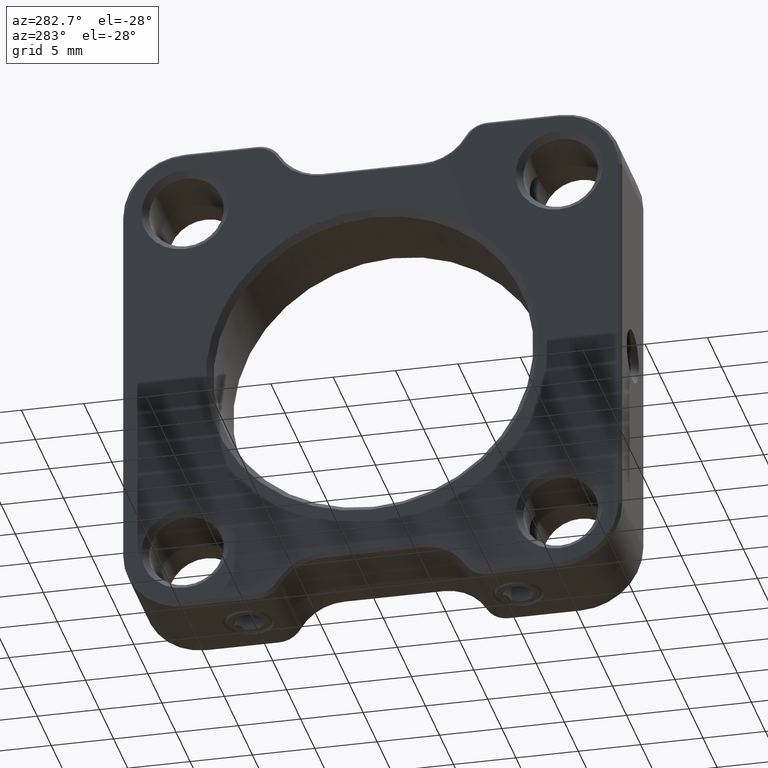
[diagram: clean part render]
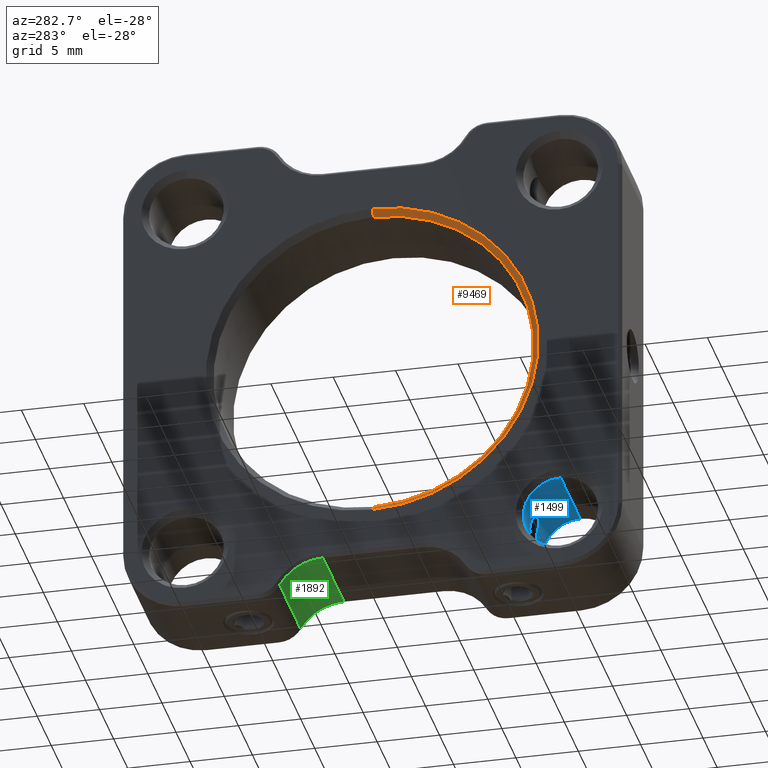
[diagram: same view with three faces highlighted in distinct colors, each labeled with its STEP entity id]
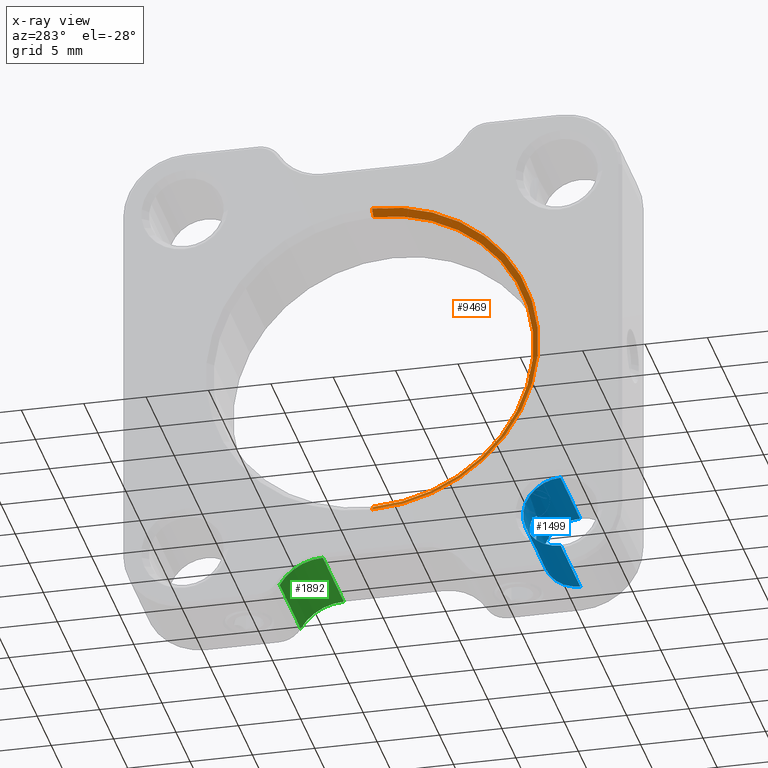
[diagram: x-ray of the same camera — body ghosted, the three highlighted faces saturated]
A machine part, auxiliary view with three faces highlighted in distinct colors.
The next image is the same camera in x-ray (body ghosted, the three faces saturated) — at least one of them is partly hidden behind the body in this view.
Their STEP definitions:

[orange] entity #9469 — the highlighted conical surface has half-angle 45 deg.
#356 = FACE_OUTER_BOUND ( 'NONE', #16214, .T. ) ;
#828 = CARTESIAN_POINT ( 'NONE',  ( -3.500000000000001332, 1.570854449266309722E-15, 12.82699999999999818 ) ) ;
#1126 = VECTOR ( 'NONE', #19083, 1000.000000000000000 ) ;
#1416 = VERTEX_POINT ( 'NONE', #5856 ) ;
#1881 = CARTESIAN_POINT ( 'NONE',  ( -4.000000000000000000, 0.000000000000000000, 0.000000000000000000 ) ) ;
#2743 = LINE ( 'NONE', #17933, #19966 ) ;
#3280 = CARTESIAN_POINT ( 'NONE',  ( -4.000000000000000000, 0.000000000000000000, 0.000000000000000000 ) ) ;
#4178 = DIRECTION ( 'NONE',  ( 0.000000000000000000, 0.000000000000000000, -1.000000000000000000 ) ) ;
#5057 = CARTESIAN_POINT ( 'NONE',  ( -3.500000000000001332, 0.000000000000000000, -12.82699999999999818 ) ) ;
#5320 = EDGE_CURVE ( 'NONE', #6261, #8031, #2743, .T. ) ;
#5475 = DIRECTION ( 'NONE',  ( -1.000000000000000000, -0.000000000000000000, -0.000000000000000000 ) ) ;
#5856 = CARTESIAN_POINT ( 'NONE',  ( -4.000000000000000000, 1.632086789223677494E-15, -13.32699999999999818 ) ) ;
#5872 = AXIS2_PLACEMENT_3D ( 'NONE', #1881, #5475, #10063 ) ;
#6261 = VERTEX_POINT ( 'NONE', #828 ) ;
#6703 = CIRCLE ( 'NONE', #13876, 13.32699999999999818 ) ;
#7908 = LINE ( 'NONE', #14664, #1126 ) ;
#8031 = VERTEX_POINT ( 'NONE', #13052 ) ;
#8540 = ORIENTED_EDGE ( 'NONE', *, *, #16275, .T. ) ;
#8572 = CIRCLE ( 'NONE', #15517, 12.82699999999999818 ) ;
#8729 = DIRECTION ( 'NONE',  ( -0.7071067811865463515, 0.000000000000000000, 0.7071067811865487940 ) ) ;
#8965 = CARTESIAN_POINT ( 'NONE',  ( -3.500000000000001332, 0.000000000000000000, 0.000000000000000000 ) ) ;
#9469 = ADVANCED_FACE ( 'NONE', ( #356 ), #19038, .F. ) ;
#9761 = DIRECTION ( 'NONE',  ( 0.000000000000000000, 0.000000000000000000, -1.000000000000000000 ) ) ;
#9885 = VERTEX_POINT ( 'NONE', #5057 ) ;
#10032 = ORIENTED_EDGE ( 'NONE', *, *, #14214, .F. ) ;
#10063 = DIRECTION ( 'NONE',  ( 0.000000000000000000, 0.000000000000000000, 1.000000000000000000 ) ) ;
#11082 = ORIENTED_EDGE ( 'NONE', *, *, #5320, .F. ) ;
#11949 = DIRECTION ( 'NONE',  ( -1.000000000000000000, -0.000000000000000000, -0.000000000000000000 ) ) ;
#13052 = CARTESIAN_POINT ( 'NONE',  ( -4.000000000000000000, 0.000000000000000000, 13.32699999999999818 ) ) ;
#13876 = AXIS2_PLACEMENT_3D ( 'NONE', #3280, #14431, #9761 ) ;
#14214 = EDGE_CURVE ( 'NONE', #9885, #6261, #8572, .T. ) ;
#14431 = DIRECTION ( 'NONE',  ( 1.000000000000000000, 0.000000000000000000, 0.000000000000000000 ) ) ;
#14664 = CARTESIAN_POINT ( 'NONE',  ( -4.000000000000000000, 1.632086789223677494E-15, -13.32699999999999818 ) ) ;
#15517 = AXIS2_PLACEMENT_3D ( 'NONE', #8965, #11949, #4178 ) ;
#16214 = EDGE_LOOP ( 'NONE', ( #10032, #8540, #17812, #11082 ) ) ;
#16275 = EDGE_CURVE ( 'NONE', #9885, #1416, #7908, .T. ) ;
#17812 = ORIENTED_EDGE ( 'NONE', *, *, #19604, .F. ) ;
#17933 = CARTESIAN_POINT ( 'NONE',  ( -4.000000000000000000, 0.000000000000000000, 13.32699999999999818 ) ) ;
#19038 = CONICAL_SURFACE ( 'NONE', #5872, 13.32699999999999818, 0.7853981633974500554 ) ;
#19083 = DIRECTION ( 'NONE',  ( -0.7071067811865463515, 8.659560562354950115E-17, -0.7071067811865487940 ) ) ;
#19604 = EDGE_CURVE ( 'NONE', #8031, #1416, #6703, .T. ) ;
#19966 = VECTOR ( 'NONE', #8729, 1000.000000000000000 ) ;

[blue] entity #1499 — the highlighted cylindrical surface (partial cylindrical patch) has radius 3 mm, axis along (1, -0, -0).
#14 = AXIS2_PLACEMENT_3D ( 'NONE', #3045, #1620, #12491 ) ;
#164 = VECTOR ( 'NONE', #13036, 1000.000000000000000 ) ;
#369 = CARTESIAN_POINT ( 'NONE',  ( 0.9943072128972927359, -12.11808910440462661, -15.84901384100071198 ) ) ;
#583 = CARTESIAN_POINT ( 'NONE',  ( -4.000000000000000000, -15.00000000000000000, -15.00000000000000000 ) ) ;
#768 = DIRECTION ( 'NONE',  ( 0.000000000000000000, 0.000000000000000000, -1.000000000000000000 ) ) ;
#969 = CARTESIAN_POINT ( 'NONE',  ( -0.8814830470640713234, -12.19956182346815865, -13.91563520749170912 ) ) ;
#1499 = ADVANCED_FACE ( 'NONE', ( #11283, #14934 ), #11044, .F. ) ;
#1620 = DIRECTION ( 'NONE',  ( -1.000000000000000000, -0.000000000000000000, -0.000000000000000000 ) ) ;
#1791 = CARTESIAN_POINT ( 'NONE',  ( 3.500000000000008438, -15.00000000000000000, -15.00000000000000000 ) ) ;
#1969 = CARTESIAN_POINT ( 'NONE',  ( 0.9554402786752965726, -12.14695799634320927, -14.05900135198912437 ) ) ;
#2321 = CARTESIAN_POINT ( 'NONE',  ( 1.134458853636107323, -11.99838584021036958, -14.86422189423992002 ) ) ;
#2678 = CARTESIAN_POINT ( 'NONE',  ( -0.3953987548890764425, -12.40192378864669109, -13.49999999999999645 ) ) ;
#2702 = CARTESIAN_POINT ( 'NONE',  ( -0.1633470091744601838, -12.45053068160573240, -16.58120436438560930 ) ) ;
#2769 = CARTESIAN_POINT ( 'NONE',  ( -0.3337448249045446569, -12.42289168433354440, -16.53835515481565821 ) ) ;
#2810 = ORIENTED_EDGE ( 'NONE', *, *, #8600, .F. ) ;
#2837 = B_SPLINE_CURVE_WITH_KNOTS ( 'NONE', 3,
 ( #19352, #15847, #14345, #6588, #7057, #9675, #1969, #6514, #11760, #2321, #17408, #5353, #8104, #369, #6932, #14746, #16323, #6994, #18261, #7259, #10281, #2702, #2769, #15151, #8987, #18200, #13526, #10533, #13659, #7336, #19550, #18133, #13459, #11967, #969, #7122, #7198, #19608 ),
 .UNSPECIFIED., .F., .F.,
 ( 4, 2, 2, 2, 2, 2, 2, 2, 2, 2, 2, 2, 2, 2, 2, 2, 2, 2, 4 ),
 ( 1.029992063861229212E-18, 0.0002515376885659033248, 0.0005030753771318055654, 0.001006150754263613950, 0.001509226131395422334, 0.002012301508527230502, 0.002515376885659038452, 0.003018452262790841632, 0.003521527639922645246, 0.003773065328488549221, 0.004024603017054452329, 0.004527678394186260280, 0.005030753771318069098, 0.005533829148449877049, 0.006036904525581689336, 0.006539979902713503358, 0.007043055279845316513, 0.007546130656977130535, 0.008049206034108944557 ),
 .UNSPECIFIED. ) ;
#3045 = CARTESIAN_POINT ( 'NONE',  ( -3.499999999999994227, -15.00000000000000000, -15.00000000000000000 ) ) ;
#3718 = ORIENTED_EDGE ( 'NONE', *, *, #15196, .T. ) ;
#4176 = CARTESIAN_POINT ( 'NONE',  ( 0.3953987548890747772, -12.40192378864669109, -13.49999999999999645 ) ) ;
#4286 = LINE ( 'NONE', #5267, #164 ) ;
#4499 = EDGE_LOOP ( 'NONE', ( #2810, #17815, #8173, #19429 ) ) ;
#5267 = CARTESIAN_POINT ( 'NONE',  ( -4.000000000000000000, -15.00000000000000000, -12.00000000000000533 ) ) ;
#5353 = CARTESIAN_POINT ( 'NONE',  ( 1.113018034195019101, -12.01818258772809855, -15.37048250758962453 ) ) ;
#5753 = DIRECTION ( 'NONE',  ( 1.000000000000000000, -0.000000000000000000, -0.000000000000000000 ) ) ;
#6208 = CARTESIAN_POINT ( 'NONE',  ( -3.499999999999994227, -15.00000000000000000, -12.00000000000000533 ) ) ;
#6338 = LINE ( 'NONE', #16532, #17077 ) ;
#6514 = CARTESIAN_POINT ( 'NONE',  ( 1.063460032339660799, -12.06341391857307599, -14.36613146744936564 ) ) ;
#6588 = CARTESIAN_POINT ( 'NONE',  ( 0.6690945615781571654, -12.30980078725514204, -13.67115813744480413 ) ) ;
#6894 = EDGE_CURVE ( 'NONE', #9126, #13295, #6338, .T. ) ;
#6932 = CARTESIAN_POINT ( 'NONE',  ( 0.9287828925549398429, -12.16786981736162865, -15.99966634695694090 ) ) ;
#6994 = CARTESIAN_POINT ( 'NONE',  ( 0.4128446948320049215, -12.39927506839481808, -16.49609038929400029 ) ) ;
#7057 = CARTESIAN_POINT ( 'NONE',  ( 0.7273698786260961446, -12.28214906752841173, -13.72805541698714293 ) ) ;
#7122 = CARTESIAN_POINT ( 'NONE',  ( -0.6783338795476633321, -12.30852537526840962, -13.66798448648881603 ) ) ;
#7198 = CARTESIAN_POINT ( 'NONE',  ( -0.5490143005335217374, -12.36400725609383144, -13.56567336082838260 ) ) ;
#7259 = CARTESIAN_POINT ( 'NONE',  ( 0.1749505893511413834, -12.44274148025707305, -16.56876857445613638 ) ) ;
#7336 = CARTESIAN_POINT ( 'NONE',  ( -1.137275312973666130, -11.99557133231314765, -15.03900217217037216 ) ) ;
#7440 = CARTESIAN_POINT ( 'NONE',  ( -0.1343079852178196143, -12.41816019141382199, -13.47187772547517604 ) ) ;
#7815 = EDGE_CURVE ( 'NONE', #16804, #9126, #12622, .T. ) ;
#7927 = VERTEX_POINT ( 'NONE', #17290 ) ;
#8063 = DIRECTION ( 'NONE',  ( 1.000000000000000000, 0.000000000000000000, 0.000000000000000000 ) ) ;
#8104 = CARTESIAN_POINT ( 'NONE',  ( 1.086225604745726603, -12.04343059973789742, -15.53379049616483876 ) ) ;
#8173 = ORIENTED_EDGE ( 'NONE', *, *, #6894, .T. ) ;
#8600 = EDGE_CURVE ( 'NONE', #16804, #7927, #4286, .T. ) ;
#8987 = CARTESIAN_POINT ( 'NONE',  ( -0.7412302879242477216, -12.27802040963020325, -16.26932857064148052 ) ) ;
#9126 = VERTEX_POINT ( 'NONE', #10207 ) ;
#9675 = CARTESIAN_POINT ( 'NONE',  ( 0.8800844852690328235, -12.20045795853365611, -13.91335782723458792 ) ) ;
#9741 = EDGE_CURVE ( 'NONE', #13295, #7927, #15625, .T. ) ;
#10207 = CARTESIAN_POINT ( 'NONE',  ( -3.499999999999994227, -15.00000000000000000, -17.99999999999999645 ) ) ;
#10262 = CARTESIAN_POINT ( 'NONE',  ( 0.3953987548890747772, -12.40192378864669109, -13.49999999999999645 ) ) ;
#10281 = CARTESIAN_POINT ( 'NONE',  ( 0.08958646585012303154, -12.44972200967875509, -16.57989950121185885 ) ) ;
#10533 = CARTESIAN_POINT ( 'NONE',  ( -1.085144284297801853, -12.04442121164795587, -15.53950434965953598 ) ) ;
#10805 = VERTEX_POINT ( 'NONE', #10262 ) ;
#10940 = VERTEX_POINT ( 'NONE', #20045 ) ;
#11044 = CYLINDRICAL_SURFACE ( 'NONE', #14669, 2.999999999999995559 ) ;
#11283 = FACE_OUTER_BOUND ( 'NONE', #4499, .T. ) ;
#11498 = DIRECTION ( 'NONE',  ( 1.000000000000000000, -0.000000000000000000, -0.000000000000000000 ) ) ;
#11760 = CARTESIAN_POINT ( 'NONE',  ( 1.097616407782358694, -12.03221902841054280, -14.53053289473603726 ) ) ;
#11967 = CARTESIAN_POINT ( 'NONE',  ( -0.9564178278150424761, -12.14627117619470020, -14.06089828808852005 ) ) ;
#11976 = CARTESIAN_POINT ( 'NONE',  ( 3.500000000000008438, -15.00000000000000000, -17.99999999999999645 ) ) ;
#12133 = CARTESIAN_POINT ( 'NONE',  ( 0.1339228886423786125, -12.41818413934239373, -13.47183624644615207 ) ) ;
#12491 = DIRECTION ( 'NONE',  ( 0.000000000000000000, 0.000000000000000000, -1.000000000000000000 ) ) ;
#12622 = CIRCLE ( 'NONE', #14, 2.999999999999995559 ) ;
#13036 = DIRECTION ( 'NONE',  ( 1.000000000000000000, -0.000000000000000000, -0.000000000000000000 ) ) ;
#13295 = VERTEX_POINT ( 'NONE', #11976 ) ;
#13459 = CARTESIAN_POINT ( 'NONE',  ( -1.064591754063033857, -12.06246803460368788, -14.37024911480242118 ) ) ;
#13526 = CARTESIAN_POINT ( 'NONE',  ( -0.9915983328690257670, -12.12017234329269222, -15.85621468401435585 ) ) ;
#13653 = EDGE_LOOP ( 'NONE', ( #18918, #3718 ) ) ;
#13659 = CARTESIAN_POINT ( 'NONE',  ( -1.112533420836679499, -12.01862846498423210, -15.37354592602558867 ) ) ;
#14345 = CARTESIAN_POINT ( 'NONE',  ( 0.5417354624980508238, -12.36003481954786842, -13.57396481602573246 ) ) ;
#14669 = AXIS2_PLACEMENT_3D ( 'NONE', #583, #11498, #768 ) ;
#14746 = CARTESIAN_POINT ( 'NONE',  ( 0.7463762909838190795, -12.27533993744116358, -16.26353540518118379 ) ) ;
#14934 = FACE_BOUND ( 'NONE', #13653, .T. ) ;
#15151 = CARTESIAN_POINT ( 'NONE',  ( -0.6219277553444960693, -12.33569817814624692, -16.38185370249237138 ) ) ;
#15196 = EDGE_CURVE ( 'NONE', #10940, #10805, #16941, .T. ) ;
#15616 = DIRECTION ( 'NONE',  ( 0.000000000000000000, 0.000000000000000000, -1.000000000000000000 ) ) ;
#15625 = CIRCLE ( 'NONE', #17856, 2.999999999999995559 ) ;
#15847 = CARTESIAN_POINT ( 'NONE',  ( 0.4721533180531272134, -12.38297865597420788, -13.53281393234487417 ) ) ;
#16323 = CARTESIAN_POINT ( 'NONE',  ( 0.6278582155367283812, -12.33322536078156872, -16.37714905324878956 ) ) ;
#16532 = CARTESIAN_POINT ( 'NONE',  ( -4.000000000000000000, -15.00000000000000000, -17.99999999999999645 ) ) ;
#16804 = VERTEX_POINT ( 'NONE', #6208 ) ;
#16941 = B_SPLINE_CURVE_WITH_KNOTS ( 'NONE', 3,
 ( #2678, #7440, #12133, #4176 ),
 .UNSPECIFIED., .F., .F.,
 ( 4, 4 ),
 ( 0.0005648106053425009602, 0.001354004834273575151 ),
 .UNSPECIFIED. ) ;
#17003 = EDGE_CURVE ( 'NONE', #10805, #10940, #2837, .T. ) ;
#17077 = VECTOR ( 'NONE', #5753, 1000.000000000000000 ) ;
#17290 = CARTESIAN_POINT ( 'NONE',  ( 3.500000000000008438, -15.00000000000000000, -12.00000000000000533 ) ) ;
#17408 = CARTESIAN_POINT ( 'NONE',  ( 1.137406156430994519, -11.99544351468404457, -15.03365553600278304 ) ) ;
#17815 = ORIENTED_EDGE ( 'NONE', *, *, #7815, .T. ) ;
#17856 = AXIS2_PLACEMENT_3D ( 'NONE', #1791, #8063, #15616 ) ;
#18133 = CARTESIAN_POINT ( 'NONE',  ( -1.098332061782803626, -12.03157271873291556, -14.53490364191060991 ) ) ;
#18200 = CARTESIAN_POINT ( 'NONE',  ( -0.9260506535711283682, -12.16981635923951011, -16.00520071140453737 ) ) ;
#18261 = CARTESIAN_POINT ( 'NONE',  ( 0.3367653131964938318, -12.41734238907510424, -16.52659282119714135 ) ) ;
#18918 = ORIENTED_EDGE ( 'NONE', *, *, #17003, .T. ) ;
#19352 = CARTESIAN_POINT ( 'NONE',  ( 0.3953987548890747772, -12.40192378864669109, -13.49999999999999645 ) ) ;
#19429 = ORIENTED_EDGE ( 'NONE', *, *, #9741, .T. ) ;
#19550 = CARTESIAN_POINT ( 'NONE',  ( -1.134544805946805734, -11.99829577432551098, -14.86715840995147175 ) ) ;
#19608 = CARTESIAN_POINT ( 'NONE',  ( -0.3953987548890764425, -12.40192378864669109, -13.49999999999999645 ) ) ;
#20045 = CARTESIAN_POINT ( 'NONE',  ( -0.3953987548890764425, -12.40192378864669109, -13.49999999999999645 ) ) ;

[green] entity #1892 — the highlighted cylindrical surface (partial cylindrical patch) has radius 4 mm, axis along (-1, -0, -0).
#1550 = VERTEX_POINT ( 'NONE', #17999 ) ;
#1592 = EDGE_LOOP ( 'NONE', ( #16484, #17385, #2312, #10098 ) ) ;
#1892 = ADVANCED_FACE ( 'NONE', ( #15675 ), #4464, .F. ) ;
#2312 = ORIENTED_EDGE ( 'NONE', *, *, #18636, .T. ) ;
#2369 = EDGE_CURVE ( 'NONE', #1550, #17483, #10047, .T. ) ;
#3741 = AXIS2_PLACEMENT_3D ( 'NONE', #5892, #19930, #9134 ) ;
#4061 = AXIS2_PLACEMENT_3D ( 'NONE', #16637, #7291, #5912 ) ;
#4464 = CYLINDRICAL_SURFACE ( 'NONE', #9630, 4.000000000000000000 ) ;
#4946 = DIRECTION ( 'NONE',  ( 0.000000000000000000, 0.000000000000000000, 1.000000000000000000 ) ) ;
#5892 = CARTESIAN_POINT ( 'NONE',  ( 3.750000000000000000, 4.000000000000000000, -20.99999999999999289 ) ) ;
#5912 = DIRECTION ( 'NONE',  ( 0.000000000000000000, 1.734723475976807094E-15, -1.000000000000000000 ) ) ;
#6101 = VERTEX_POINT ( 'NONE', #19055 ) ;
#6173 = CARTESIAN_POINT ( 'NONE',  ( 4.000000000000000000, 4.000000000000000000, -20.99999999999999289 ) ) ;
#6614 = CARTESIAN_POINT ( 'NONE',  ( 3.750000000000000000, 3.999999999999997335, -16.99999999999999289 ) ) ;
#7291 = DIRECTION ( 'NONE',  ( -1.000000000000000000, 0.000000000000000000, 0.000000000000000000 ) ) ;
#7448 = DIRECTION ( 'NONE',  ( 1.000000000000000000, 0.000000000000000000, 0.000000000000000000 ) ) ;
#7750 = VECTOR ( 'NONE', #7448, 1000.000000000000000 ) ;
#7751 = DIRECTION ( 'NONE',  ( -1.000000000000000000, -0.000000000000000000, -0.000000000000000000 ) ) ;
#9134 = DIRECTION ( 'NONE',  ( 0.000000000000000000, 0.000000000000000000, -1.000000000000000000 ) ) ;
#9317 = DIRECTION ( 'NONE',  ( -1.000000000000000000, -0.000000000000000000, -0.000000000000000000 ) ) ;
#9490 = LINE ( 'NONE', #13906, #7750 ) ;
#9630 = AXIS2_PLACEMENT_3D ( 'NONE', #6173, #7751, #4946 ) ;
#10047 = CIRCLE ( 'NONE', #3741, 4.000000000000000000 ) ;
#10098 = ORIENTED_EDGE ( 'NONE', *, *, #2369, .T. ) ;
#10150 = EDGE_CURVE ( 'NONE', #6101, #17057, #18959, .T. ) ;
#11233 = LINE ( 'NONE', #13924, #14403 ) ;
#13906 = CARTESIAN_POINT ( 'NONE',  ( 4.000000000000000000, 7.464101615137757051, -19.00000000000000000 ) ) ;
#13924 = CARTESIAN_POINT ( 'NONE',  ( 4.000000000000000000, 3.999999999999997335, -16.99999999999999289 ) ) ;
#14403 = VECTOR ( 'NONE', #9317, 1000.000000000000000 ) ;
#15675 = FACE_OUTER_BOUND ( 'NONE', #1592, .T. ) ;
#16484 = ORIENTED_EDGE ( 'NONE', *, *, #17125, .T. ) ;
#16611 = CARTESIAN_POINT ( 'NONE',  ( -3.750000000000000000, 7.464101615137757051, -19.00000000000000000 ) ) ;
#16637 = CARTESIAN_POINT ( 'NONE',  ( -3.750000000000000000, 4.000000000000000000, -20.99999999999999289 ) ) ;
#17057 = VERTEX_POINT ( 'NONE', #16611 ) ;
#17125 = EDGE_CURVE ( 'NONE', #17483, #6101, #11233, .T. ) ;
#17385 = ORIENTED_EDGE ( 'NONE', *, *, #10150, .T. ) ;
#17483 = VERTEX_POINT ( 'NONE', #6614 ) ;
#17999 = CARTESIAN_POINT ( 'NONE',  ( 3.750000000000000000, 7.464101615137757051, -19.00000000000000000 ) ) ;
#18636 = EDGE_CURVE ( 'NONE', #17057, #1550, #9490, .T. ) ;
#18959 = CIRCLE ( 'NONE', #4061, 4.000000000000000000 ) ;
#19055 = CARTESIAN_POINT ( 'NONE',  ( -3.750000000000000000, 3.999999999999997335, -16.99999999999999289 ) ) ;
#19930 = DIRECTION ( 'NONE',  ( 1.000000000000000000, 0.000000000000000000, 0.000000000000000000 ) ) ;